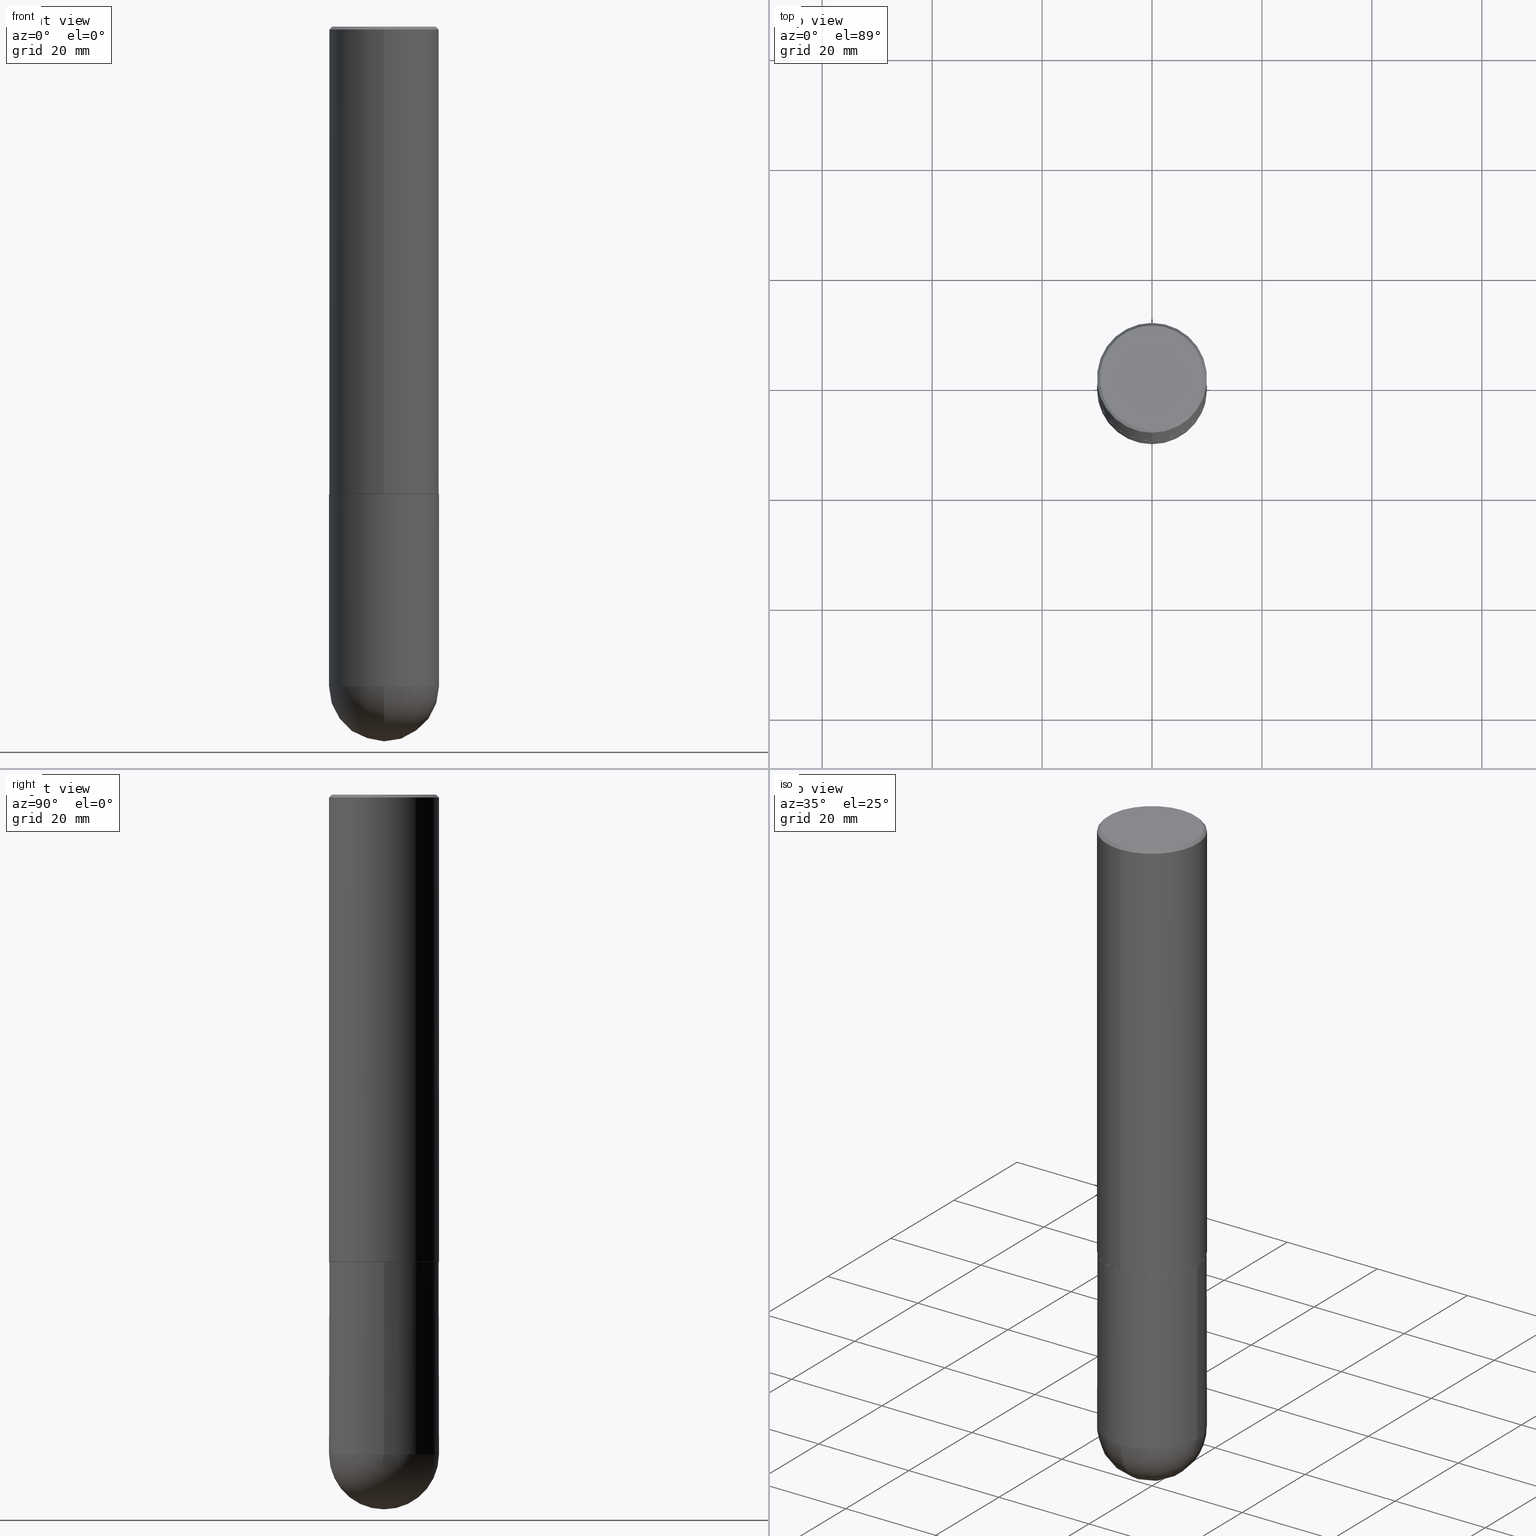
[diagram: canonical four-view strip — front | top / right | iso, engineering-drawing reading convention]
A machine part, canonical four-view strip (front | top / right | iso — engineering-drawing reading convention). The complete STEP part file that produces these views, byte-faithful:
ISO-10303-21;
HEADER;
FILE_DESCRIPTION (( 'STEP AP203' ),
    '1' );
FILE_NAME ('49641.STEP',
    '2024-04-10T12:31:46',
    ( '' ),
    ( '' ),
    'SwSTEP 2.0',
    'SolidWorks 2023',
    '' );
FILE_SCHEMA (( 'CONFIG_CONTROL_DESIGN' ));
ENDSEC;

DATA;
#1 = PERSON ( 'UNSPECIFIED', 'UNSPECIFIED', 'UNSPECIFIED', ('UNSPECIFIED'), ('UNSPECIFIED'), ('UNSPECIFIED') ) ;
#2 = PRODUCT ( '49641', '49641', '', ( #42 ) ) ;
#3 = CARTESIAN_POINT ( 'NONE',  ( 1.155337282794106175E-28, -1.649515443723055925E-14, -4.724400000000000155 ) ) ;
#4 = CYLINDRICAL_SURFACE ( 'NONE', #45, 0.3936999999999999389 ) ;
#5 = AXIS2_PLACEMENT_3D ( 'NONE', #137, #402, #244 ) ;
#6 = APPROVAL_DATE_TIME ( #151, #152 ) ;
#7 = APPROVAL_STATUS ( 'not_yet_approved' ) ;
#8 = EDGE_CURVE ( 'NONE', #129, #225, #77, .T. ) ;
#9 = LOCAL_TIME ( 8, 31, 46.00000000000000000, #200 ) ;
#10 = LOCAL_TIME ( 8, 31, 46.00000000000000000, #154 ) ;
#11 = EDGE_LOOP ( 'NONE', ( #157, #194, #357, #211 ) ) ;
#12 = ORIENTED_EDGE ( 'NONE', *, *, #131, .T. ) ;
#13 = CARTESIAN_POINT ( 'NONE',  ( 0.000000000000000000, 0.000000000000000000, 0.000000000000000000 ) ) ;
#14 = DATE_AND_TIME ( #161, #10 ) ;
#15 = DIRECTION ( 'NONE',  ( -6.982962677686265922E-15, -1.000000000000000000, 4.163344669033670901E-15 ) ) ;
#16 = PLANE ( 'NONE',  #232 ) ;
#17 = AXIS2_PLACEMENT_3D ( 'NONE', #83, #76, #368 ) ;
#18 = LINE ( 'NONE', #343, #247 ) ;
#19 = CARTESIAN_POINT ( 'NONE',  ( 1.155337282794106175E-28, -1.649515443723055925E-14, -4.724400000000000155 ) ) ;
#20 = CARTESIAN_POINT ( 'NONE',  ( 2.749192406205083217E-15, 0.3936999999999999389, -0.02000000000000146105 ) ) ;
#21 = VERTEX_POINT ( 'NONE', #367 ) ;
#22 = DIRECTION ( 'NONE',  ( -1.000000000000000000, 6.982962677686265922E-15, -4.876176775795935793E-29 ) ) ;
#23 = EDGE_LOOP ( 'NONE', ( #162, #401 ) ) ;
#24 = DIRECTION ( 'NONE',  ( -2.446881955452705196E-29, 3.489457628660526153E-15, 1.000000000000000000 ) ) ;
#25 = ADVANCED_FACE ( 'NONE', ( #242 ), #81, .T. ) ;
#26 = ORIENTED_EDGE ( 'NONE', *, *, #145, .T. ) ;
#27 = CARTESIAN_POINT ( 'NONE',  ( 8.188245775726933728E-29, -1.167712100854958587E-14, -3.346400000000000041 ) ) ;
#28 = DIRECTION ( 'NONE',  ( 1.000000000000000000, -6.982962677686265133E-15, 0.000000000000000000 ) ) ;
#29 = ADVANCED_FACE ( 'NONE', ( #163 ), #16, .F. ) ;
#30 = ORIENTED_EDGE ( 'NONE', *, *, #258, .T. ) ;
#31 = FACE_OUTER_BOUND ( 'NONE', #397, .T. ) ;
#32 = CARTESIAN_POINT ( 'NONE',  ( 2.749192406205083217E-15, 0.3936999999999999389, -0.02000000000000146105 ) ) ;
#33 = DIRECTION ( 'NONE',  ( -6.982962677686265922E-15, -1.000000000000000000, 3.489457628660526153E-15 ) ) ;
#34 = CIRCLE ( 'NONE', #272, 0.3936999999999999389 ) ;
#35 = LINE ( 'NONE', #32, #100 ) ;
#36 = ORIENTED_EDGE ( 'NONE', *, *, #311, .T. ) ;
#37 = CALENDAR_DATE ( 2024, 10, 4 ) ;
#38 = AXIS2_PLACEMENT_3D ( 'NONE', #274, #108, #172 ) ;
#39 = APPROVAL_STATUS ( 'not_yet_approved' ) ;
#40 = ORIENTED_EDGE ( 'NONE', *, *, #136, .F. ) ;
#41 = ORIENTED_EDGE ( 'NONE', *, *, #87, .T. ) ;
#42 = MECHANICAL_CONTEXT ( 'NONE', #390, 'mechanical' ) ;
#43 = AXIS2_PLACEMENT_3D ( 'NONE', #287, #378, #33 ) ;
#44 = PERSON_AND_ORGANIZATION ( #1, #308 ) ;
#45 = AXIS2_PLACEMENT_3D ( 'NONE', #122, #359, #320 ) ;
#46 = EDGE_CURVE ( 'NONE', #389, #243, #35, .T. ) ;
#47 = COORDINATED_UNIVERSAL_TIME_OFFSET ( 5, 0, .BEHIND. ) ;
#48 = DIRECTION ( 'NONE',  ( -2.445468806185136877E-29, 3.491481338843145188E-15, 1.000000000000000000 ) ) ;
#49 = DIRECTION ( 'NONE',  ( 2.446881955452705196E-29, -3.489457628660526153E-15, -1.000000000000000000 ) ) ;
#50 = CARTESIAN_POINT ( 'NONE',  ( 2.749192406205164864E-15, 0.3936999999999883371, -3.346400000000001818 ) ) ;
#51 = CARTESIAN_POINT ( 'NONE',  ( -2.749192406205084400E-15, -0.3937000000000002164, 1.373799468403649886E-15 ) ) ;
#52 = ADVANCED_FACE ( 'NONE', ( #149 ), #4, .T. ) ;
#53 = AXIS2_PLACEMENT_3D ( 'NONE', #167, #133, #15 ) ;
#54 = EDGE_LOOP ( 'NONE', ( #183, #165, #56, #316 ) ) ;
#55 = DIRECTION ( 'NONE',  ( -2.446881955452705196E-29, 3.489457628660526153E-15, 1.000000000000000000 ) ) ;
#56 = ORIENTED_EDGE ( 'NONE', *, *, #114, .F. ) ;
#57 = LOCAL_TIME ( 8, 31, 46.00000000000000000, #47 ) ;
#58 = EDGE_CURVE ( 'NONE', #129, #256, #283, .T. ) ;
#59 = DIRECTION ( 'NONE',  ( -6.982962677686265133E-15, -1.000000000000000000, 4.173946514383900962E-15 ) ) ;
#60 = DESIGN_CONTEXT ( 'detailed design', #107, 'design' ) ;
#61 = MANIFOLD_SOLID_BREP ( 'Body-Move/Copy2[2]', #210 ) ;
#62 = EDGE_LOOP ( 'NONE', ( #354, #155, #36, #12, #142 ) ) ;
#63 = DIRECTION ( 'NONE',  ( -2.446881955452704915E-29, 3.489457628660526153E-15, 1.000000000000000000 ) ) ;
#64 = PRODUCT_DEFINITION_SHAPE ( 'NONE', 'NONE',  #284 ) ;
#65 = APPLICATION_PROTOCOL_DEFINITION ( 'international standard', 'config_control_design', 1994, #390 ) ;
#66 =( GEOMETRIC_REPRESENTATION_CONTEXT ( 3 ) GLOBAL_UNCERTAINTY_ASSIGNED_CONTEXT ( ( #182 ) ) GLOBAL_UNIT_ASSIGNED_CONTEXT ( ( #406, #376, #196 ) ) REPRESENTATION_CONTEXT ( 'NONE', 'WORKASPACE' ) );
#67 = ADVANCED_FACE ( 'NONE', ( #412 ), #383, .T. ) ;
#68 = ORIENTED_EDGE ( 'NONE', *, *, #311, .F. ) ;
#69 = DIRECTION ( 'NONE',  ( 1.000000000000000000, 0.000000000000000000, 0.000000000000000000 ) ) ;
#70 = ORIENTED_EDGE ( 'NONE', *, *, #237, .F. ) ;
#71 = SECURITY_CLASSIFICATION ( '', '', #358 ) ;
#72 = VERTEX_POINT ( 'NONE', #236 ) ;
#73 = DATE_TIME_ROLE ( 'creation_date' ) ;
#74 = VECTOR ( 'NONE', #314, 39.37007874015748143 ) ;
#75 = DIRECTION ( 'NONE',  ( 1.000000000000000000, -6.982962677686265133E-15, 0.000000000000000000 ) ) ;
#76 = DIRECTION ( 'NONE',  ( -2.445468806185136597E-29, 3.491481338843145583E-15, 1.000000000000000000 ) ) ;
#77 = CIRCLE ( 'NONE', #253, 0.3926999999999999935 ) ;
#78 = EDGE_LOOP ( 'NONE', ( #70, #262, #377, #41 ) ) ;
#79 = FACE_OUTER_BOUND ( 'NONE', #11, .T. ) ;
#80 = CARTESIAN_POINT ( 'NONE',  ( 8.185798893771481388E-29, -1.167363155092092416E-14, -3.345400000000000151 ) ) ;
#81 = CYLINDRICAL_SURFACE ( 'NONE', #273, 0.3936999999999999389 ) ;
#82 = EDGE_CURVE ( 'NONE', #365, #405, #94, .T. ) ;
#83 = CARTESIAN_POINT ( 'NONE',  ( 8.183516813017942119E-29, -1.168389315230470294E-14, -3.346400000000000041 ) ) ;
#84 = CC_DESIGN_SECURITY_CLASSIFICATION ( #71, ( #369 ) ) ;
#85 = ORIENTED_EDGE ( 'NONE', *, *, #58, .F. ) ;
#86 = AXIS2_PLACEMENT_3D ( 'NONE', #372, #214, #317 ) ;
#87 = EDGE_CURVE ( 'NONE', #243, #21, #254, .T. ) ;
#88 = CARTESIAN_POINT ( 'NONE',  ( 0.3937000000000000499, -1.443308555850978615E-14, -3.346400000000000041 ) ) ;
#89 = CARTESIAN_POINT ( 'NONE',  ( 4.893763910905431166E-31, -6.978915257321081641E-17, -0.02000000000000008715 ) ) ;
#90 = ORIENTED_EDGE ( 'NONE', *, *, #46, .F. ) ;
#91 = LINE ( 'NONE', #221, #326 ) ;
#92 = CC_DESIGN_PERSON_AND_ORGANIZATION_ASSIGNMENT ( #191, #387, ( #369 ) ) ;
#93 = CYLINDRICAL_SURFACE ( 'NONE', #43, 0.3937000000000002164 ) ;
#94 = CIRCLE ( 'NONE', #391, 0.3937000000000003830 ) ;
#95 = DIRECTION ( 'NONE',  ( -1.000000000000000000, 6.982962677686265922E-15, -4.883557194083112340E-29 ) ) ;
#96 = EDGE_CURVE ( 'NONE', #264, #21, #392, .T. ) ;
#97 = ORIENTED_EDGE ( 'NONE', *, *, #58, .T. ) ;
#98 = PERSON_AND_ORGANIZATION_ROLE ( 'creator' ) ;
#99 = DIRECTION ( 'NONE',  ( 4.937700262164540942E-15, 0.7071067811865441310, -0.7071067811865509034 ) ) ;
#100 = VECTOR ( 'NONE', #99, 39.37007874015748143 ) ;
#101 = PERSON_AND_ORGANIZATION ( #1, #308 ) ;
#102 = ADVANCED_FACE ( 'NONE', ( #341 ), #309, .F. ) ;
#103 = COORDINATED_UNIVERSAL_TIME_OFFSET ( 5, 0, .BEHIND. ) ;
#104 = ORIENTED_EDGE ( 'NONE', *, *, #237, .T. ) ;
#105 = DATE_TIME_ROLE ( 'classification_date' ) ;
#106 = CIRCLE ( 'NONE', #310, 0.3736999999999999211 ) ;
#107 = APPLICATION_CONTEXT ( 'configuration controlled 3d designs of mechanical parts and assemblies' ) ;
#108 = DIRECTION ( 'NONE',  ( -1.000000000000000000, 7.105427357601001070E-15, -4.926315508542082329E-29 ) ) ;
#109 = DIRECTION ( 'NONE',  ( -6.982962677686265133E-15, -1.000000000000000000, 4.173946514383900962E-15 ) ) ;
#110 = DIRECTION ( 'NONE',  ( 1.000000000000000000, -6.982962677686267499E-15, 0.000000000000000000 ) ) ;
#111 = CARTESIAN_POINT ( 'NONE',  ( -2.700978061722651252E-15, -0.3937000000000001054, -0.01999999999999870978 ) ) ;
#112 = CIRCLE ( 'NONE', #360, 0.3926999999999999935 ) ;
#113 = CARTESIAN_POINT ( 'NONE',  ( 2.793854037008796718E-15, 0.3926999999999883362, -3.346400000000001818 ) ) ;
#114 = EDGE_CURVE ( 'NONE', #220, #230, #219, .T. ) ;
#115 = DIRECTION ( 'NONE',  ( -2.446881955452705196E-29, 3.489457628660526153E-15, 1.000000000000000000 ) ) ;
#116 = DIRECTION ( 'NONE',  ( -4.937700262166064233E-15, -0.7071067811867622899, 0.7071067811863327446 ) ) ;
#117 = AXIS2_PLACEMENT_3D ( 'NONE', #174, #49, #140 ) ;
#118 = FACE_OUTER_BOUND ( 'NONE', #330, .T. ) ;
#119 = CARTESIAN_POINT ( 'NONE',  ( 0.3936999999999999389, -1.683871620097271747E-14, -4.724400000000000155 ) ) ;
#120 = ORIENTED_EDGE ( 'NONE', *, *, #258, .F. ) ;
#121 = CIRCLE ( 'NONE', #291, 0.3937000000000004385 ) ;
#122 = CARTESIAN_POINT ( 'NONE',  ( 0.000000000000000000, 0.000000000000000000, 0.000000000000000000 ) ) ;
#123 = PERSON_AND_ORGANIZATION ( #1, #308 ) ;
#124 = APPROVAL_ROLE ( '' ) ;
#125 = CARTESIAN_POINT ( 'NONE',  ( 2.609533152651356620E-15, 0.3736999999999999211, -1.255300552441906118E-15 ) ) ;
#126 = EDGE_CURVE ( 'NONE', #264, #256, #407, .T. ) ;
#127 = EDGE_LOOP ( 'NONE', ( #206, #281, #120, #298 ) ) ;
#128 = APPROVAL_DATE_TIME ( #14, #321 ) ;
#129 = VERTEX_POINT ( 'NONE', #113 ) ;
#130 = DIRECTION ( 'NONE',  ( -2.446881955452705196E-29, 3.489457628660526153E-15, 1.000000000000000000 ) ) ;
#131 = EDGE_CURVE ( 'NONE', #338, #340, #18, .T. ) ;
#132 = CIRCLE ( 'NONE', #138, 0.3936999999999999389 ) ;
#133 = DIRECTION ( 'NONE',  ( -2.446881955452705196E-29, 3.489457628660526153E-15, 1.000000000000000000 ) ) ;
#134 = FACE_OUTER_BOUND ( 'NONE', #78, .T. ) ;
#135 = DIRECTION ( 'NONE',  ( -2.446881955452705196E-29, 3.489457628660526153E-15, 1.000000000000000000 ) ) ;
#136 = EDGE_CURVE ( 'NONE', #338, #405, #132, .T. ) ;
#137 = CARTESIAN_POINT ( 'NONE',  ( 4.893763910905431166E-31, -6.978915257321081641E-17, -0.02000000000000008715 ) ) ;
#138 = AXIS2_PLACEMENT_3D ( 'NONE', #208, #307, #218 ) ;
#139 = ORIENTED_EDGE ( 'NONE', *, *, #179, .T. ) ;
#140 = DIRECTION ( 'NONE',  ( 6.982962677686265133E-15, 1.000000000000000000, -3.491137977679279424E-15 ) ) ;
#141 = DIRECTION ( 'NONE',  ( -6.982962677686265922E-15, -1.000000000000000000, 3.489457628660526153E-15 ) ) ;
#142 = ORIENTED_EDGE ( 'NONE', *, *, #201, .F. ) ;
#143 =( LENGTH_UNIT ( ) NAMED_UNIT ( * ) SI_UNIT ( $, .METRE. ) );
#144 = CARTESIAN_POINT ( 'NONE',  ( 2.790301323329995031E-15, 0.3926999999999883362, -3.346400000000001818 ) ) ;
#145 = EDGE_CURVE ( 'NONE', #389, #176, #329, .T. ) ;
#146 = DIRECTION ( 'NONE',  ( 2.446881955452705196E-29, -3.489457628660526153E-15, -1.000000000000000000 ) ) ;
#147 = LINE ( 'NONE', #408, #169 ) ;
#148 = CARTESIAN_POINT ( 'NONE',  ( 2.749192406205197601E-15, 0.3936999999999834521, -4.724400000000001931 ) ) ;
#149 = FACE_OUTER_BOUND ( 'NONE', #62, .T. ) ;
#150 = CARTESIAN_POINT ( 'NONE',  ( -0.3936999999999999389, 2.797406750687513998E-15, -1.936584745033356455E-29 ) ) ;
#151 = DATE_AND_TIME ( #37, #160 ) ;
#152 = APPROVAL ( #7, 'UNSPECIFIED' ) ;
#153 = CIRCLE ( 'NONE', #38, 0.3937000000000003830 ) ;
#154 = COORDINATED_UNIVERSAL_TIME_OFFSET ( 5, 0, .BEHIND. ) ;
#155 = ORIENTED_EDGE ( 'NONE', *, *, #114, .T. ) ;
#156 = EDGE_CURVE ( 'NONE', #256, #264, #121, .T. ) ;
#157 = ORIENTED_EDGE ( 'NONE', *, *, #277, .F. ) ;
#158 = PERSON_AND_ORGANIZATION ( #1, #308 ) ;
#159 = EDGE_LOOP ( 'NONE', ( #380, #188, #337, #269, #263 ) ) ;
#160 = LOCAL_TIME ( 8, 31, 46.00000000000000000, #335 ) ;
#161 = CALENDAR_DATE ( 2024, 10, 4 ) ;
#162 = ORIENTED_EDGE ( 'NONE', *, *, #270, .F. ) ;
#163 = FACE_OUTER_BOUND ( 'NONE', #295, .T. ) ;
#164 = CALENDAR_DATE ( 2024, 10, 4 ) ;
#165 = ORIENTED_EDGE ( 'NONE', *, *, #227, .T. ) ;
#166 = ADVANCED_FACE ( 'NONE', ( #134 ), #275, .T. ) ;
#167 = CARTESIAN_POINT ( 'NONE',  ( 8.185798893771481388E-29, -1.167363155092092416E-14, -3.345400000000000151 ) ) ;
#168 = CARTESIAN_POINT ( 'NONE',  ( -2.742209443527314766E-15, -0.3927000000000117064, -3.346399999999998265 ) ) ;
#169 = VECTOR ( 'NONE', #381, 39.37007874015748143 ) ;
#170 = DIRECTION ( 'NONE',  ( -6.982962677686265133E-15, -1.000000000000000000, 3.489457628660525758E-15 ) ) ;
#171 = EDGE_LOOP ( 'NONE', ( #203, #97, #371, #327 ) ) ;
#172 = DIRECTION ( 'NONE',  ( -7.105427357600999492E-15, -1.000000000000000000, 0.000000000000000000 ) ) ;
#173 = CARTESIAN_POINT ( 'NONE',  ( 1.122225305002717438E-28, -1.696933680537060797E-14, -4.724400000000000155 ) ) ;
#174 = CARTESIAN_POINT ( 'NONE',  ( 4.893763910905431166E-31, -6.978915257321081641E-17, -0.02000000000000008715 ) ) ;
#175 = AXIS2_PLACEMENT_3D ( 'NONE', #241, #115, #245 ) ;
#176 = VERTEX_POINT ( 'NONE', #312 ) ;
#177 = FACE_OUTER_BOUND ( 'NONE', #127, .T. ) ;
#178 = FACE_OUTER_BOUND ( 'NONE', #23, .T. ) ;
#179 = EDGE_CURVE ( 'NONE', #340, #72, #233, .T. ) ;
#180 = APPROVAL_PERSON_ORGANIZATION ( #364, #321, #226 ) ;
#181 = DIRECTION ( 'NONE',  ( -2.445468806185136877E-29, 3.491481338843145188E-15, 1.000000000000000000 ) ) ;
#182 = UNCERTAINTY_MEASURE_WITH_UNIT (LENGTH_MEASURE( 1.000000000000000082E-05 ), #406, 'distance_accuracy_value', 'NONE');
#183 = ORIENTED_EDGE ( 'NONE', *, *, #82, .F. ) ;
#184 = DIRECTION ( 'NONE',  ( 1.000000000000000000, -6.982962677686265133E-15, 0.000000000000000000 ) ) ;
#185 = CIRCLE ( 'NONE', #261, 0.3937000000000000499 ) ;
#186 = VECTOR ( 'NONE', #181, 39.37007874015748143 ) ;
#187 = EDGE_CURVE ( 'NONE', #176, #389, #106, .T. ) ;
#188 = ORIENTED_EDGE ( 'NONE', *, *, #315, .T. ) ;
#189 = CARTESIAN_POINT ( 'NONE',  ( 2.679362779428219918E-15, 0.3736999999999999211, -1.206590789053373624E-15 ) ) ;
#190 = DIRECTION ( 'NONE',  ( 6.982962677686265922E-15, 1.000000000000000000, -3.489457628660526153E-15 ) ) ;
#191 = PERSON_AND_ORGANIZATION ( #1, #308 ) ;
#192 = AXIS2_PLACEMENT_3D ( 'NONE', #255, #95, #350 ) ;
#193 = ORIENTED_EDGE ( 'NONE', *, *, #187, .T. ) ;
#194 = ORIENTED_EDGE ( 'NONE', *, *, #156, .T. ) ;
#195 = ORIENTED_EDGE ( 'NONE', *, *, #375, .T. ) ;
#196 =( NAMED_UNIT ( * ) SI_UNIT ( $, .STERADIAN. ) SOLID_ANGLE_UNIT ( ) );
#197 = VECTOR ( 'NONE', #249, 39.37007874015748143 ) ;
#198 = AXIS2_PLACEMENT_3D ( 'NONE', #286, #333, #184 ) ;
#199 = ORIENTED_EDGE ( 'NONE', *, *, #187, .F. ) ;
#200 = COORDINATED_UNIVERSAL_TIME_OFFSET ( 5, 0, .BEHIND. ) ;
#201 = EDGE_CURVE ( 'NONE', #72, #340, #185, .T. ) ;
#202 = PERSON_AND_ORGANIZATION ( #1, #308 ) ;
#203 = ORIENTED_EDGE ( 'NONE', *, *, #270, .T. ) ;
#204 = AXIS2_PLACEMENT_3D ( 'NONE', #89, #146, #409 ) ;
#205 = CARTESIAN_POINT ( 'NONE',  ( 0.000000000000000000, 0.000000000000000000, 0.000000000000000000 ) ) ;
#206 = ORIENTED_EDGE ( 'NONE', *, *, #126, .T. ) ;
#207 = LOCAL_TIME ( 8, 31, 46.00000000000000000, #103 ) ;
#208 = CARTESIAN_POINT ( 'NONE',  ( 1.155337282794106175E-28, -1.649515443723055925E-14, -4.724400000000000155 ) ) ;
#209 = APPROVAL ( #39, 'UNSPECIFIED' ) ;
#210 = CLOSED_SHELL ( 'NONE', ( #293, #344, #67, #166, #231, #336, #351, #29 ) ) ;
#211 = ORIENTED_EDGE ( 'NONE', *, *, #87, .F. ) ;
#212 = AXIS2_PLACEMENT_3D ( 'NONE', #322, #403, #352 ) ;
#213 = DIRECTION ( 'NONE',  ( 6.982962677686265133E-15, 1.000000000000000000, 0.000000000000000000 ) ) ;
#214 = DIRECTION ( 'NONE',  ( -2.446881955452705196E-29, 3.489457628660526153E-15, 1.000000000000000000 ) ) ;
#215 = CARTESIAN_POINT ( 'NONE',  ( 0.000000000000000000, 0.000000000000000000, 0.000000000000000000 ) ) ;
#216 = AXIS2_PLACEMENT_3D ( 'NONE', #331, #324, #224 ) ;
#217 = MANIFOLD_SOLID_BREP ( 'Body-Move/Copy2[1]', #301 ) ;
#218 = DIRECTION ( 'NONE',  ( 1.000000000000000000, -6.982962677686265133E-15, 0.000000000000000000 ) ) ;
#219 = CIRCLE ( 'NONE', #304, 0.3936999999999999389 ) ;
#220 = VERTEX_POINT ( 'NONE', #266 ) ;
#221 = CARTESIAN_POINT ( 'NONE',  ( -2.742209443527314766E-15, -0.3927000000000117064, -3.346399999999998265 ) ) ;
#222 = PLANE ( 'NONE',  #388 ) ;
#223 = CONICAL_SURFACE ( 'NONE', #212, 0.3926999999999999935, 0.7853981633977554777 ) ;
#224 = DIRECTION ( 'NONE',  ( 6.982962677686265922E-15, 1.000000000000000000, -4.163344669033671690E-15 ) ) ;
#225 = VERTEX_POINT ( 'NONE', #168 ) ;
#226 = APPROVAL_ROLE ( '' ) ;
#227 = EDGE_CURVE ( 'NONE', #365, #230, #153, .T. ) ;
#228 = APPROVAL_STATUS ( 'not_yet_approved' ) ;
#229 = APPROVAL_ROLE ( '' ) ;
#230 = VERTEX_POINT ( 'NONE', #234 ) ;
#231 = ADVANCED_FACE ( 'NONE', ( #79 ), #238, .T. ) ;
#232 = AXIS2_PLACEMENT_3D ( 'NONE', #125, #288, #190 ) ;
#233 = CIRCLE ( 'NONE', #17, 0.3937000000000000499 ) ;
#234 = CARTESIAN_POINT ( 'NONE',  ( -2.797406750687401585E-15, -0.3937000000000168698, -4.724399999999999267 ) ) ;
#235 = CARTESIAN_POINT ( 'NONE',  ( 8.188245775726933728E-29, -1.167712100854958587E-14, -3.346400000000000041 ) ) ;
#236 = CARTESIAN_POINT ( 'NONE',  ( -0.3937000000000000499, -1.129211704408011867E-14, -3.346400000000000041 ) ) ;
#237 = EDGE_CURVE ( 'NONE', #176, #21, #396, .T. ) ;
#238 = CYLINDRICAL_SURFACE ( 'NONE', #285, 0.3937000000000002164 ) ;
#239 = CC_DESIGN_APPROVAL ( #321, ( #369 ) ) ;
#240 = CC_DESIGN_DATE_AND_TIME_ASSIGNMENT ( #265, #105, ( #71 ) ) ;
#241 = CARTESIAN_POINT ( 'NONE',  ( -2.383740821795408192E-45, 3.399413108927262571E-31, 9.741952677706454540E-17 ) ) ;
#242 = FACE_OUTER_BOUND ( 'NONE', #159, .T. ) ;
#243 = VERTEX_POINT ( 'NONE', #20 ) ;
#244 = DIRECTION ( 'NONE',  ( -6.982962677686265133E-15, -1.000000000000000000, 3.491137977679279424E-15 ) ) ;
#245 = DIRECTION ( 'NONE',  ( -6.982962677686265133E-15, -1.000000000000000000, 3.489457628660525758E-15 ) ) ;
#246 = DIRECTION ( 'NONE',  ( -2.445468806185136597E-29, 3.491481338843145583E-15, 1.000000000000000000 ) ) ;
#247 = VECTOR ( 'NONE', #48, 39.37007874015748143 ) ;
#248 = CARTESIAN_POINT ( 'NONE',  ( -2.749192406205003936E-15, -0.3937000000000120958, -3.345399999999998819 ) ) ;
#249 = DIRECTION ( 'NONE',  ( 5.024295867789605402E-15, 0.7071067811867671749, 0.7071067811863278596 ) ) ;
#250 = CC_DESIGN_PERSON_AND_ORGANIZATION_ASSIGNMENT ( #158, #98, ( #284 ) ) ;
#251 = DIRECTION ( 'NONE',  ( -6.982962677686265133E-15, -1.000000000000000000, 4.173946514383900962E-15 ) ) ;
#252 = FACE_OUTER_BOUND ( 'NONE', #171, .T. ) ;
#253 = AXIS2_PLACEMENT_3D ( 'NONE', #235, #135, #109 ) ;
#254 = CIRCLE ( 'NONE', #5, 0.3937000000000000499 ) ;
#255 = CARTESIAN_POINT ( 'NONE',  ( 1.122225305002717438E-28, -1.696933680537060797E-14, -4.724400000000000155 ) ) ;
#256 = VERTEX_POINT ( 'NONE', #399 ) ;
#257 = SHAPE_DEFINITION_REPRESENTATION ( #64, #313 ) ;
#258 = EDGE_CURVE ( 'NONE', #21, #243, #267, .T. ) ;
#259 = AXIS2_PLACEMENT_3D ( 'NONE', #13, #260, #69 ) ;
#260 = DIRECTION ( 'NONE',  ( 0.000000000000000000, 0.000000000000000000, 1.000000000000000000 ) ) ;
#261 = AXIS2_PLACEMENT_3D ( 'NONE', #271, #268, #110 ) ;
#262 = ORIENTED_EDGE ( 'NONE', *, *, #145, .F. ) ;
#263 = ORIENTED_EDGE ( 'NONE', *, *, #136, .T. ) ;
#264 = VERTEX_POINT ( 'NONE', #248 ) ;
#265 = DATE_AND_TIME ( #292, #57 ) ;
#266 = CARTESIAN_POINT ( 'NONE',  ( -0.3936999999999999389, -1.129211704408012183E-14, -4.724400000000000155 ) ) ;
#267 = CIRCLE ( 'NONE', #86, 0.3937000000000000499 ) ;
#268 = DIRECTION ( 'NONE',  ( -2.445468806185136597E-29, 3.491481338843145583E-15, 1.000000000000000000 ) ) ;
#269 = ORIENTED_EDGE ( 'NONE', *, *, #131, .F. ) ;
#270 = EDGE_CURVE ( 'NONE', #225, #129, #112, .T. ) ;
#271 = CARTESIAN_POINT ( 'NONE',  ( 8.183516813017942119E-29, -1.168389315230470294E-14, -3.346400000000000041 ) ) ;
#272 = AXIS2_PLACEMENT_3D ( 'NONE', #3, #246, #28 ) ;
#273 = AXIS2_PLACEMENT_3D ( 'NONE', #215, #318, #290 ) ;
#274 = CARTESIAN_POINT ( 'NONE',  ( 1.122225305002717438E-28, -1.696933680537060797E-14, -4.724400000000000155 ) ) ;
#275 = CONICAL_SURFACE ( 'NONE', #117, 0.3937000000000000499, 0.7853981633974469467 ) ;
#276 = DIRECTION ( 'NONE',  ( -2.446881955452705196E-29, 3.489457628660526153E-15, 1.000000000000000000 ) ) ;
#277 = EDGE_CURVE ( 'NONE', #256, #243, #147, .T. ) ;
#278 = SPHERICAL_SURFACE ( 'NONE', #192, 0.3937000000000003830 ) ;
#279 = DIRECTION ( 'NONE',  ( 1.000000000000000000, -6.982962677686265922E-15, 4.883557194083112340E-29 ) ) ;
#280 = APPROVAL_PERSON_ORGANIZATION ( #44, #209, #229 ) ;
#281 = ORIENTED_EDGE ( 'NONE', *, *, #277, .T. ) ;
#282 = LENGTH_MEASURE_WITH_UNIT ( LENGTH_MEASURE( 0.02539999999999999897 ), #143 );
#283 = LINE ( 'NONE', #144, #197 ) ;
#284 = PRODUCT_DEFINITION ( 'UNKNOWN', '', #369, #60 ) ;
#285 = AXIS2_PLACEMENT_3D ( 'NONE', #205, #366, #342 ) ;
#286 = CARTESIAN_POINT ( 'NONE',  ( 1.155337282794106175E-28, -1.649515443723055925E-14, -4.724400000000000155 ) ) ;
#287 = CARTESIAN_POINT ( 'NONE',  ( 0.000000000000000000, 0.000000000000000000, 0.000000000000000000 ) ) ;
#288 = DIRECTION ( 'NONE',  ( 2.446881955452704915E-29, -3.489457628660526153E-15, -1.000000000000000000 ) ) ;
#289 = SPHERICAL_SURFACE ( 'NONE', #216, 0.3937000000000003830 ) ;
#290 = DIRECTION ( 'NONE',  ( 1.000000000000000000, -6.982962677686266711E-15, 4.876176775795935793E-29 ) ) ;
#291 = AXIS2_PLACEMENT_3D ( 'NONE', #80, #276, #373 ) ;
#292 = CALENDAR_DATE ( 2024, 10, 4 ) ;
#293 = ADVANCED_FACE ( 'NONE', ( #252 ), #223, .T. ) ;
#294 = ORIENTED_EDGE ( 'NONE', *, *, #82, .T. ) ;
#295 = EDGE_LOOP ( 'NONE', ( #26, #193 ) ) ;
#296 = PERSON_AND_ORGANIZATION_ROLE ( 'classification_officer' ) ;
#297 = PRODUCT_RELATED_PRODUCT_CATEGORY ( 'detail', '', ( #2 ) ) ;
#298 = ORIENTED_EDGE ( 'NONE', *, *, #96, .F. ) ;
#299 = APPLICATION_PROTOCOL_DEFINITION ( 'international standard', 'config_control_design', 1994, #107 ) ;
#300 = APPROVAL_PERSON_ORGANIZATION ( #355, #152, #124 ) ;
#301 = CLOSED_SHELL ( 'NONE', ( #25, #382, #404, #102, #52 ) ) ;
#302 = CALENDAR_DATE ( 2024, 10, 4 ) ;
#303 = VECTOR ( 'NONE', #370, 39.37007874015748143 ) ;
#304 = AXIS2_PLACEMENT_3D ( 'NONE', #19, #393, #75 ) ;
#305 = DATE_AND_TIME ( #164, #9 ) ;
#306 = ORIENTED_EDGE ( 'NONE', *, *, #227, .F. ) ;
#307 = DIRECTION ( 'NONE',  ( -2.445468806185136597E-29, 3.491481338843145583E-15, 1.000000000000000000 ) ) ;
#308 = ORGANIZATION ( 'UNSPECIFIED', 'UNSPECIFIED', '' ) ;
#309 = PLANE ( 'NONE',  #348 ) ;
#310 = AXIS2_PLACEMENT_3D ( 'NONE', #347, #130, #170 ) ;
#311 = EDGE_CURVE ( 'NONE', #230, #338, #400, .T. ) ;
#312 = CARTESIAN_POINT ( 'NONE',  ( -2.632373081744935921E-15, -0.3736999999999999211, 1.401429842607502813E-15 ) ) ;
#313 = ADVANCED_BREP_SHAPE_REPRESENTATION ( '49641', ( #217, #61, #259 ), #66 ) ;
#314 = DIRECTION ( 'NONE',  ( -2.446881955452705196E-29, 3.489457628660526153E-15, 1.000000000000000000 ) ) ;
#315 = EDGE_CURVE ( 'NONE', #220, #72, #384, .T. ) ;
#316 = ORIENTED_EDGE ( 'NONE', *, *, #394, .F. ) ;
#317 = DIRECTION ( 'NONE',  ( -6.982962677686265133E-15, -1.000000000000000000, 3.491137977679279424E-15 ) ) ;
#318 = DIRECTION ( 'NONE',  ( -2.445468806185136597E-29, 3.491481338843145583E-15, 1.000000000000000000 ) ) ;
#319 = ORIENTED_EDGE ( 'NONE', *, *, #156, .F. ) ;
#320 = DIRECTION ( 'NONE',  ( 1.000000000000000000, -6.982962677686266711E-15, 4.876176775795935793E-29 ) ) ;
#321 = APPROVAL ( #228, 'UNSPECIFIED' ) ;
#322 = CARTESIAN_POINT ( 'NONE',  ( 8.188245775726933728E-29, -1.167712100854958587E-14, -3.346400000000000041 ) ) ;
#323 = ORIENTED_EDGE ( 'NONE', *, *, #8, .T. ) ;
#324 = DIRECTION ( 'NONE',  ( -1.000000000000000000, 6.982962677686265922E-15, -4.883557194083112340E-29 ) ) ;
#325 = CC_DESIGN_PERSON_AND_ORGANIZATION_ASSIGNMENT ( #123, #386, ( #2 ) ) ;
#326 = VECTOR ( 'NONE', #116, 39.37007874015748143 ) ;
#327 = ORIENTED_EDGE ( 'NONE', *, *, #375, .F. ) ;
#328 = CARTESIAN_POINT ( 'NONE',  ( 8.188245775726933728E-29, -1.167712100854958587E-14, -3.346400000000000041 ) ) ;
#329 = CIRCLE ( 'NONE', #175, 0.3736999999999999211 ) ;
#330 = EDGE_LOOP ( 'NONE', ( #85, #323, #195, #319 ) ) ;
#331 = CARTESIAN_POINT ( 'NONE',  ( 1.122225305002717438E-28, -1.696933680537060797E-14, -4.724400000000000155 ) ) ;
#332 = CONICAL_SURFACE ( 'NONE', #410, 0.3926999999999999935, 0.7853981633977554777 ) ;
#333 = DIRECTION ( 'NONE',  ( -2.445468806185136597E-29, 3.491481338843145583E-15, 1.000000000000000000 ) ) ;
#334 = EDGE_LOOP ( 'NONE', ( #199, #104, #30, #90 ) ) ;
#335 = COORDINATED_UNIVERSAL_TIME_OFFSET ( 5, 0, .BEHIND. ) ;
#336 = ADVANCED_FACE ( 'NONE', ( #118 ), #332, .T. ) ;
#337 = ORIENTED_EDGE ( 'NONE', *, *, #179, .F. ) ;
#338 = VERTEX_POINT ( 'NONE', #119 ) ;
#339 = PERSON_AND_ORGANIZATION_ROLE ( 'creator' ) ;
#340 = VERTEX_POINT ( 'NONE', #88 ) ;
#341 = FACE_OUTER_BOUND ( 'NONE', #374, .T. ) ;
#342 = DIRECTION ( 'NONE',  ( -6.982962677686265922E-15, -1.000000000000000000, 3.489457628660526153E-15 ) ) ;
#343 = CARTESIAN_POINT ( 'NONE',  ( 0.3936999999999999389, -2.749192406205082822E-15, 1.919750796630859611E-29 ) ) ;
#344 = ADVANCED_FACE ( 'NONE', ( #177 ), #93, .T. ) ;
#345 = DIRECTION ( 'NONE',  ( 2.438088387897960049E-29, -3.491481338843145188E-15, -1.000000000000000000 ) ) ;
#346 = CC_DESIGN_PERSON_AND_ORGANIZATION_ASSIGNMENT ( #101, #296, ( #71 ) ) ;
#347 = CARTESIAN_POINT ( 'NONE',  ( -2.383740821795408192E-45, 3.399413108927262571E-31, 9.741952677706454540E-17 ) ) ;
#348 = AXIS2_PLACEMENT_3D ( 'NONE', #50, #345, #22 ) ;
#349 = FACE_OUTER_BOUND ( 'NONE', #54, .T. ) ;
#350 = DIRECTION ( 'NONE',  ( 6.982962677686265922E-15, 1.000000000000000000, -4.163344669033671690E-15 ) ) ;
#351 = ADVANCED_FACE ( 'NONE', ( #178 ), #222, .F. ) ;
#352 = DIRECTION ( 'NONE',  ( -6.982962677686265133E-15, -1.000000000000000000, 4.173946514383900962E-15 ) ) ;
#353 = CARTESIAN_POINT ( 'NONE',  ( 1.220186806742475998E-28, -1.831982583623194050E-14, -5.118100000000000094 ) ) ;
#354 = ORIENTED_EDGE ( 'NONE', *, *, #315, .F. ) ;
#355 = PERSON_AND_ORGANIZATION ( #1, #308 ) ;
#356 = ORIENTED_EDGE ( 'NONE', *, *, #201, .T. ) ;
#357 = ORIENTED_EDGE ( 'NONE', *, *, #96, .T. ) ;
#358 = SECURITY_CLASSIFICATION_LEVEL ( 'unclassified' ) ;
#359 = DIRECTION ( 'NONE',  ( -2.445468806185136597E-29, 3.491481338843145583E-15, 1.000000000000000000 ) ) ;
#360 = AXIS2_PLACEMENT_3D ( 'NONE', #411, #55, #59 ) ;
#361 = DATE_AND_TIME ( #302, #207 ) ;
#362 = APPROVAL_DATE_TIME ( #361, #209 ) ;
#363 = CC_DESIGN_PERSON_AND_ORGANIZATION_ASSIGNMENT ( #202, #339, ( #369 ) ) ;
#364 = PERSON_AND_ORGANIZATION ( #1, #308 ) ;
#365 = VERTEX_POINT ( 'NONE', #353 ) ;
#366 = DIRECTION ( 'NONE',  ( -2.446881955452705196E-29, 3.489457628660526153E-15, 1.000000000000000000 ) ) ;
#367 = CARTESIAN_POINT ( 'NONE',  ( -2.700978061722651252E-15, -0.3937000000000001054, -0.01999999999999870978 ) ) ;
#368 = DIRECTION ( 'NONE',  ( 1.000000000000000000, -6.982962677686267499E-15, 0.000000000000000000 ) ) ;
#369 = PRODUCT_DEFINITION_FORMATION_WITH_SPECIFIED_SOURCE ( 'ANY', '', #2, .NOT_KNOWN. ) ;
#370 = DIRECTION ( 'NONE',  ( -4.851104656540957175E-15, -0.7071067811865490160, -0.7071067811865460184 ) ) ;
#371 = ORIENTED_EDGE ( 'NONE', *, *, #126, .F. ) ;
#372 = CARTESIAN_POINT ( 'NONE',  ( 4.893763910905431166E-31, -6.978915257321081641E-17, -0.02000000000000008715 ) ) ;
#373 = DIRECTION ( 'NONE',  ( -6.982962677686265922E-15, -1.000000000000000000, 4.163344669033670901E-15 ) ) ;
#374 = EDGE_LOOP ( 'NONE', ( #139, #356 ) ) ;
#375 = EDGE_CURVE ( 'NONE', #225, #264, #91, .T. ) ;
#376 =( NAMED_UNIT ( * ) PLANE_ANGLE_UNIT ( ) SI_UNIT ( $, .RADIAN. ) );
#377 = ORIENTED_EDGE ( 'NONE', *, *, #46, .T. ) ;
#378 = DIRECTION ( 'NONE',  ( -2.446881955452705196E-29, 3.489457628660526153E-15, 1.000000000000000000 ) ) ;
#379 = CC_DESIGN_APPROVAL ( #209, ( #284 ) ) ;
#380 = ORIENTED_EDGE ( 'NONE', *, *, #394, .T. ) ;
#381 = DIRECTION ( 'NONE',  ( -2.446881955452705196E-29, 3.489457628660526153E-15, 1.000000000000000000 ) ) ;
#382 = ADVANCED_FACE ( 'NONE', ( #349 ), #289, .T. ) ;
#383 = CONICAL_SURFACE ( 'NONE', #204, 0.3937000000000000499, 0.7853981633974469467 ) ;
#384 = LINE ( 'NONE', #150, #186 ) ;
#385 = CC_DESIGN_DATE_AND_TIME_ASSIGNMENT ( #305, #73, ( #284 ) ) ;
#386 = PERSON_AND_ORGANIZATION_ROLE ( 'design_owner' ) ;
#387 = PERSON_AND_ORGANIZATION_ROLE ( 'design_supplier' ) ;
#388 = AXIS2_PLACEMENT_3D ( 'NONE', #328, #63, #141 ) ;
#389 = VERTEX_POINT ( 'NONE', #189 ) ;
#390 = APPLICATION_CONTEXT ( 'configuration controlled 3d designs of mechanical parts and assemblies' ) ;
#391 = AXIS2_PLACEMENT_3D ( 'NONE', #173, #279, #213 ) ;
#392 = LINE ( 'NONE', #51, #74 ) ;
#393 = DIRECTION ( 'NONE',  ( -2.445468806185136597E-29, 3.491481338843145583E-15, 1.000000000000000000 ) ) ;
#394 = EDGE_CURVE ( 'NONE', #405, #220, #34, .T. ) ;
#395 = CC_DESIGN_APPROVAL ( #152, ( #71 ) ) ;
#396 = LINE ( 'NONE', #111, #303 ) ;
#397 = EDGE_LOOP ( 'NONE', ( #306, #294, #40, #68 ) ) ;
#398 = DIMENSIONAL_EXPONENTS ( 1.000000000000000000, 0.000000000000000000, 0.000000000000000000, 0.000000000000000000, 0.000000000000000000, 0.000000000000000000, 0.000000000000000000 ) ;
#399 = CARTESIAN_POINT ( 'NONE',  ( 2.797406750687558174E-15, 0.3936999999999888367, -3.345400000000001928 ) ) ;
#400 = CIRCLE ( 'NONE', #198, 0.3936999999999999389 ) ;
#401 = ORIENTED_EDGE ( 'NONE', *, *, #8, .F. ) ;
#402 = DIRECTION ( 'NONE',  ( -2.446881955452705196E-29, 3.489457628660526153E-15, 1.000000000000000000 ) ) ;
#403 = DIRECTION ( 'NONE',  ( -2.446881955452705196E-29, 3.489457628660526153E-15, 1.000000000000000000 ) ) ;
#404 = ADVANCED_FACE ( 'NONE', ( #31 ), #278, .T. ) ;
#405 = VERTEX_POINT ( 'NONE', #148 ) ;
#406 =( CONVERSION_BASED_UNIT ( 'INCH', #282 ) LENGTH_UNIT ( ) NAMED_UNIT ( #398 ) );
#407 = CIRCLE ( 'NONE', #53, 0.3937000000000004385 ) ;
#408 = CARTESIAN_POINT ( 'NONE',  ( 2.797406750687515575E-15, 0.3937000000000002164, -1.373799468403649886E-15 ) ) ;
#409 = DIRECTION ( 'NONE',  ( 6.982962677686265133E-15, 1.000000000000000000, -3.491137977679279424E-15 ) ) ;
#410 = AXIS2_PLACEMENT_3D ( 'NONE', #27, #24, #251 ) ;
#411 = CARTESIAN_POINT ( 'NONE',  ( 8.188245775726933728E-29, -1.167712100854958587E-14, -3.346400000000000041 ) ) ;
#412 = FACE_OUTER_BOUND ( 'NONE', #334, .T. ) ;
ENDSEC;
END-ISO-10303-21;
